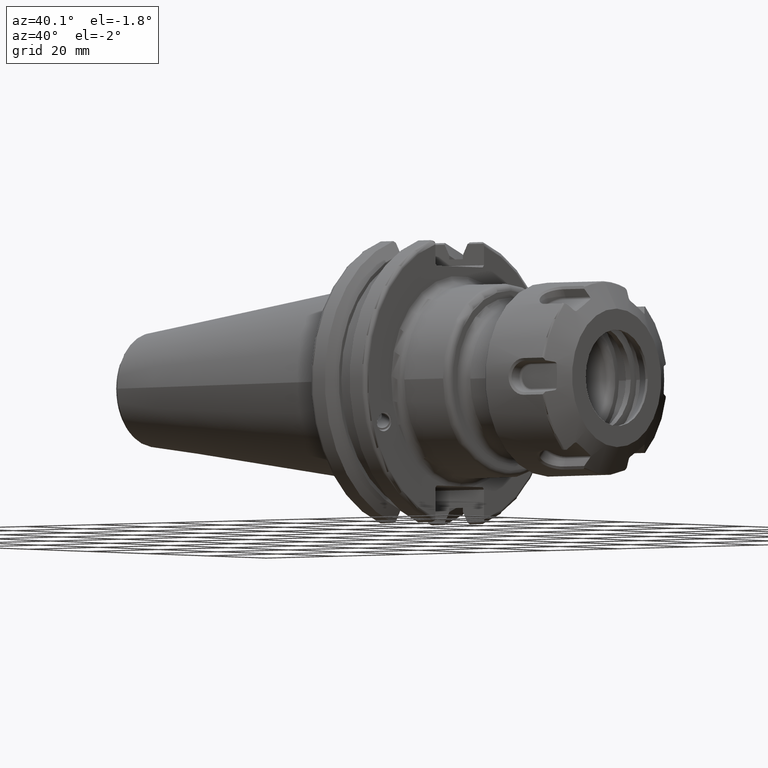
[diagram: clean part render]
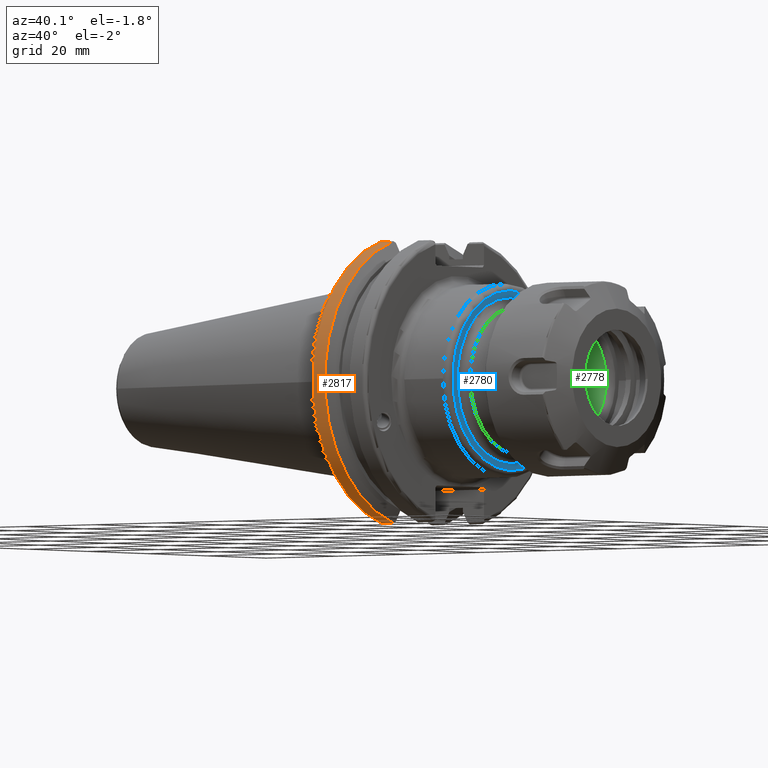
[diagram: same view with three faces highlighted in distinct colors, each labeled with its STEP entity id]
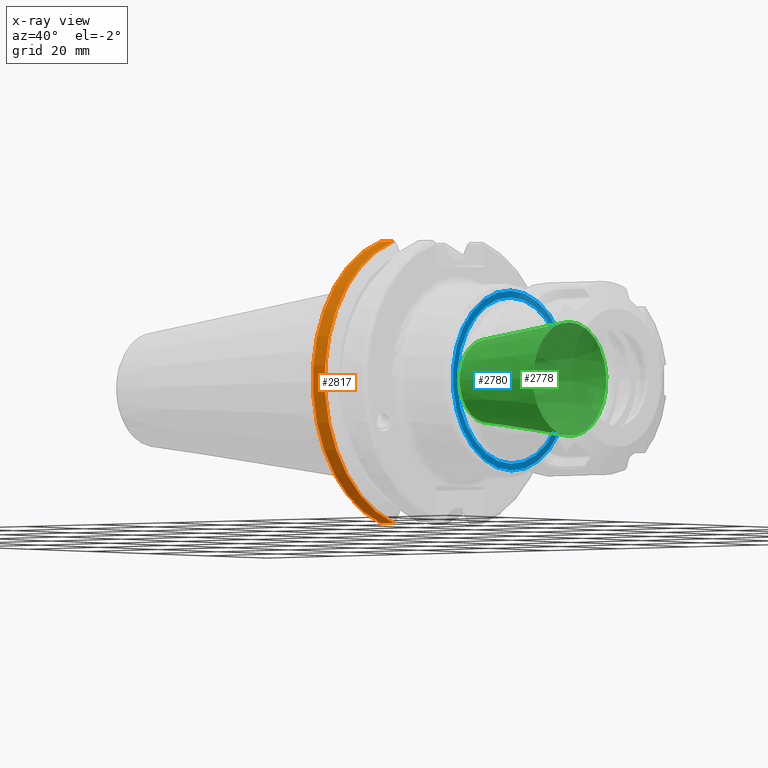
[diagram: x-ray of the same camera — body ghosted, the three highlighted faces saturated]
A machine part, auxiliary view with three faces highlighted in distinct colors.
The next image is the same camera in x-ray (body ghosted, the three faces saturated) — at least one of them is partly hidden behind the body in this view.
Their STEP definitions:

[orange] entity #2817 — the highlighted cylindrical surface (partial cylindrical patch) has radius 31.75 mm, axis along (1, 0, 0).
#271=CYLINDRICAL_SURFACE('',#3122,31.75);
#434=FACE_OUTER_BOUND('',#612,.T.);
#612=EDGE_LOOP('',(#2177,#2178,#2179,#2180));
#803=LINE('',#4661,#982);
#804=LINE('',#4667,#983);
#982=VECTOR('',#3606,10.);
#983=VECTOR('',#3609,10.);
#1143=CIRCLE('',#3120,31.75);
#1144=CIRCLE('',#3123,31.75);
#1338=VERTEX_POINT('',#4640);
#1339=VERTEX_POINT('',#4649);
#1340=VERTEX_POINT('',#4660);
#1341=VERTEX_POINT('',#4666);
#1649=EDGE_CURVE('',#1338,#1339,#1143,.T.);
#1651=EDGE_CURVE('',#1339,#1340,#803,.T.);
#1653=EDGE_CURVE('',#1341,#1338,#804,.T.);
#1654=EDGE_CURVE('',#1340,#1341,#1144,.T.);
#2177=ORIENTED_EDGE('',*,*,#1649,.F.);
#2178=ORIENTED_EDGE('',*,*,#1653,.F.);
#2179=ORIENTED_EDGE('',*,*,#1654,.F.);
#2180=ORIENTED_EDGE('',*,*,#1651,.F.);
#2817=ADVANCED_FACE('',(#434),#271,.T.);
#3120=AXIS2_PLACEMENT_3D('',#4650,#3602,#3603);
#3122=AXIS2_PLACEMENT_3D('',#4665,#3607,#3608);
#3123=AXIS2_PLACEMENT_3D('',#4668,#3610,#3611);
#3602=DIRECTION('center_axis',(-1.,0.,0.));
#3603=DIRECTION('ref_axis',(0.,-1.,1.60812264967664E-16));
#3606=DIRECTION('',(1.,0.,0.));
#3607=DIRECTION('center_axis',(1.,0.,0.));
#3608=DIRECTION('ref_axis',(0.,-1.,1.22464679914735E-16));
#3609=DIRECTION('',(-1.,0.,0.));
#3610=DIRECTION('center_axis',(1.,0.,0.));
#3611=DIRECTION('ref_axis',(0.,0.,-1.));
#4640=CARTESIAN_POINT('',(4.175,-8.67204822802685,-30.5427254764662));
#4649=CARTESIAN_POINT('',(4.175,-8.67204822802685,30.5427254764662));
#4650=CARTESIAN_POINT('Origin',(4.175,0.,0.));
#4660=CARTESIAN_POINT('',(7.60083323092435,-8.67204822802685,30.5427254764662));
#4661=CARTESIAN_POINT('',(5.38791661546218,-8.67204822802685,30.5427254764662));
#4665=CARTESIAN_POINT('Origin',(5.38791661546218,0.,0.));
#4666=CARTESIAN_POINT('',(7.60083323092435,-8.67204822802685,-30.5427254764662));
#4667=CARTESIAN_POINT('',(5.38791661546218,-8.67204822802685,-30.5427254764662));
#4668=CARTESIAN_POINT('Origin',(7.60083323092435,0.,0.));

[blue] entity #2780 — the highlighted planar face has unit normal (1, 0, 0).
#300=FACE_BOUND('',#565,.T.);
#321=PLANE('',#3035);
#397=FACE_OUTER_BOUND('',#564,.T.);
#564=EDGE_LOOP('',(#1954));
#565=EDGE_LOOP('',(#1955));
#1110=CIRCLE('',#3031,19.5);
#1114=CIRCLE('',#3036,18.);
#1241=VERTEX_POINT('',#4289);
#1244=VERTEX_POINT('',#4297);
#1517=EDGE_CURVE('',#1241,#1241,#1110,.T.);
#1521=EDGE_CURVE('',#1244,#1244,#1114,.T.);
#1954=ORIENTED_EDGE('',*,*,#1517,.F.);
#1955=ORIENTED_EDGE('',*,*,#1521,.F.);
#2780=ADVANCED_FACE('',(#397,#300),#321,.T.);
#3031=AXIS2_PLACEMENT_3D('',#4290,#3366,#3367);
#3035=AXIS2_PLACEMENT_3D('',#4296,#3374,#3375);
#3036=AXIS2_PLACEMENT_3D('',#4298,#3376,#3377);
#3366=DIRECTION('center_axis',(-1.,0.,0.));
#3367=DIRECTION('ref_axis',(0.,-1.,1.83697019872103E-16));
#3374=DIRECTION('center_axis',(1.,0.,0.));
#3375=DIRECTION('ref_axis',(0.,0.,-1.));
#3376=DIRECTION('center_axis',(1.,0.,0.));
#3377=DIRECTION('ref_axis',(0.,-1.,1.83697019872103E-16));
#4289=CARTESIAN_POINT('',(33.5,-2.38806125833734E-15,19.5));
#4290=CARTESIAN_POINT('Origin',(33.5,0.,0.));
#4296=CARTESIAN_POINT('Origin',(33.5,16.,0.));
#4297=CARTESIAN_POINT('',(33.5,-2.20436423846524E-15,18.));
#4298=CARTESIAN_POINT('Origin',(33.5,0.,0.));

[green] entity #2778 — the highlighted conical surface has half-angle 8 deg.
#395=FACE_OUTER_BOUND('',#562,.T.);
#562=EDGE_LOOP('',(#1944,#1945,#1946,#1947,#1948));
#744=LINE('',#4286,#923);
#923=VECTOR('',#3361,10.75);
#1106=CIRCLE('',#3025,12.318528003612);
#1107=CIRCLE('',#3026,12.318528003612);
#1109=CIRCLE('',#3029,9.);
#1238=VERTEX_POINT('',#4279);
#1239=VERTEX_POINT('',#4280);
#1240=VERTEX_POINT('',#4285);
#1512=EDGE_CURVE('',#1238,#1239,#1106,.T.);
#1513=EDGE_CURVE('',#1239,#1238,#1107,.T.);
#1515=EDGE_CURVE('',#1239,#1240,#744,.T.);
#1516=EDGE_CURVE('',#1240,#1240,#1109,.T.);
#1944=ORIENTED_EDGE('',*,*,#1512,.F.);
#1945=ORIENTED_EDGE('',*,*,#1513,.F.);
#1946=ORIENTED_EDGE('',*,*,#1515,.T.);
#1947=ORIENTED_EDGE('',*,*,#1516,.F.);
#1948=ORIENTED_EDGE('',*,*,#1515,.F.);
#2752=CONICAL_SURFACE('',#3028,10.75,0.139626340159547);
#2778=ADVANCED_FACE('',(#395),#2752,.F.);
#3025=AXIS2_PLACEMENT_3D('',#4281,#3353,#3354);
#3026=AXIS2_PLACEMENT_3D('',#4282,#3355,#3356);
#3028=AXIS2_PLACEMENT_3D('',#4284,#3359,#3360);
#3029=AXIS2_PLACEMENT_3D('',#4287,#3362,#3363);
#3353=DIRECTION('center_axis',(-1.,0.,0.));
#3354=DIRECTION('ref_axis',(0.,-1.,3.06161699786838E-17));
#3355=DIRECTION('center_axis',(-1.,0.,0.));
#3356=DIRECTION('ref_axis',(0.,-1.,3.06161699786838E-17));
#3359=DIRECTION('center_axis',(1.,0.,0.));
#3360=DIRECTION('ref_axis',(0.,1.,0.));
#3361=DIRECTION('',(-0.99026806874157,0.139173100960066,1.70437892618156E-17));
#3362=DIRECTION('center_axis',(1.,0.,0.));
#3363=DIRECTION('ref_axis',(0.,0.,-1.));
#4279=CARTESIAN_POINT('',(50.2087596514401,-1.50858458898304E-15,12.318528003612));
#4280=CARTESIAN_POINT('',(50.2087596514401,-12.318528003612,-1.50858458898305E-15));
#4281=CARTESIAN_POINT('Origin',(50.2087596514401,0.,-1.88573073622881E-15));
#4282=CARTESIAN_POINT('Origin',(50.2087596514401,0.,-1.88573073622881E-15));
#4284=CARTESIAN_POINT('Origin',(39.0481029858277,0.,0.));
#4285=CARTESIAN_POINT('',(26.5962059716553,-9.,-1.10218211923262E-15));
#4286=CARTESIAN_POINT('',(39.0481029858277,-10.75,-1.3164953090834E-15));
#4287=CARTESIAN_POINT('Origin',(26.5962059716553,0.,0.));